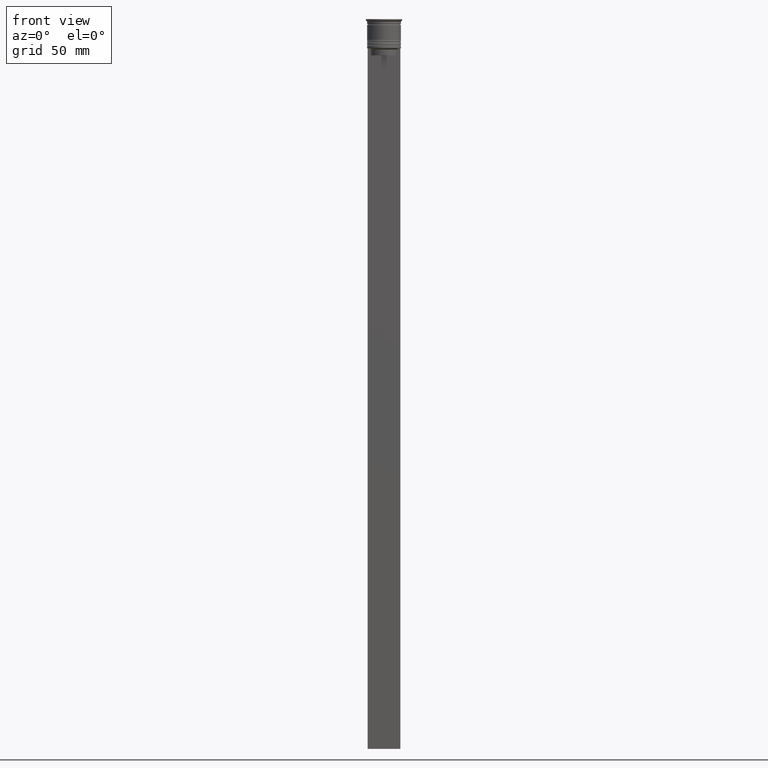
[diagram: clean part render]
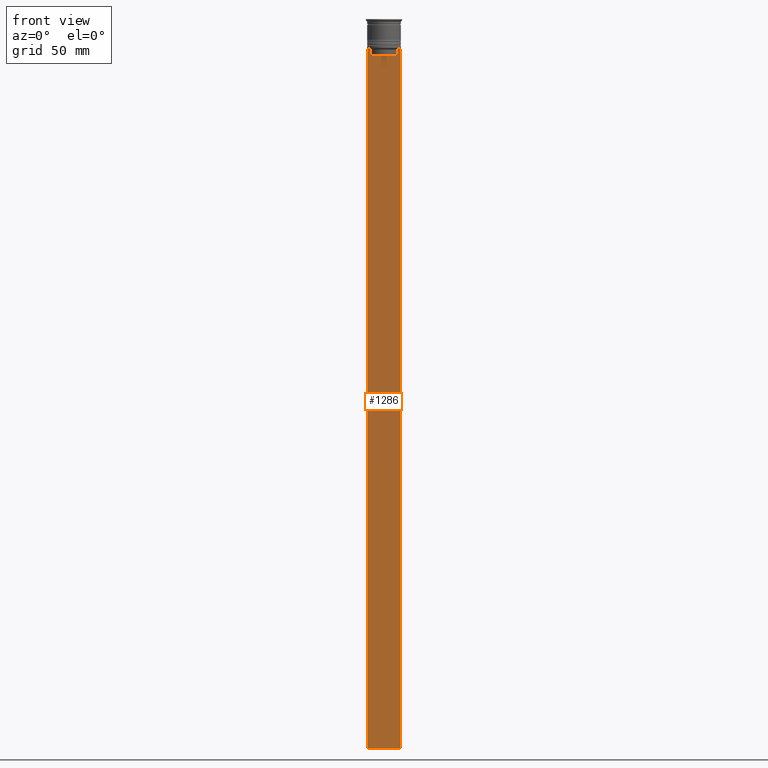
[diagram: same view with one face highlighted and labeled with its STEP entity id]
A machine part, front view. The second image highlights one B-rep face of the part: STEP entity #1286.
In plain terms, the highlighted planar face has unit normal (0, -1, -0).
Its self-contained STEP definition (entity closure, byte-faithful):
#10 = DIRECTION ( 'NONE',  ( -1.000000000000000000, 0.000000000000000000, 0.000000000000000000 ) ) ;
#13 = VERTEX_POINT ( 'NONE', #2265 ) ;
#16 = EDGE_CURVE ( 'NONE', #13, #789, #964, .T. ) ;
#17 = CARTESIAN_POINT ( 'NONE',  ( 7.000000000000012434, -0.5000000000000022204, 1.535668847618198329 ) ) ;
#29 = DIRECTION ( 'NONE',  ( 0.000000000000000000, 0.000000000000000000, -1.000000000000000000 ) ) ;
#54 = ORIENTED_EDGE ( 'NONE', *, *, #634, .F. ) ;
#97 = EDGE_CURVE ( 'NONE', #13, #1515, #109, .T. ) ;
#109 = LINE ( 'NONE', #1565, #1177 ) ;
#126 = DIRECTION ( 'NONE',  ( 1.000000000000000000, 0.000000000000000000, 0.000000000000000000 ) ) ;
#136 = DIRECTION ( 'NONE',  ( 0.000000000000000000, -1.000000000000000000, -0.000000000000000000 ) ) ;
#138 = VERTEX_POINT ( 'NONE', #2136 ) ;
#181 = CARTESIAN_POINT ( 'NONE',  ( 7.000000000000012434, -0.5000000000000022204, -312.5000000000000000 ) ) ;
#194 = ORIENTED_EDGE ( 'NONE', *, *, #783, .F. ) ;
#291 = CARTESIAN_POINT ( 'NONE',  ( 6.129641098791995368, -0.5000000000000022204, -12.50000000000000000 ) ) ;
#292 = DIRECTION ( 'NONE',  ( 1.000000000000000000, 0.000000000000000000, 0.000000000000000000 ) ) ;
#324 = EDGE_LOOP ( 'NONE', ( #1462, #2163, #2137, #1088, #1497, #2047, #522, #54, #662, #194 ) ) ;
#325 = LINE ( 'NONE', #2152, #648 ) ;
#407 = VERTEX_POINT ( 'NONE', #1988 ) ;
#432 = DIRECTION ( 'NONE',  ( 1.000000000000000000, 0.000000000000000000, 0.000000000000000000 ) ) ;
#522 = ORIENTED_EDGE ( 'NONE', *, *, #548, .F. ) ;
#542 = VERTEX_POINT ( 'NONE', #1187 ) ;
#548 = EDGE_CURVE ( 'NONE', #542, #407, #1181, .T. ) ;
#607 = VERTEX_POINT ( 'NONE', #1710 ) ;
#634 = EDGE_CURVE ( 'NONE', #975, #542, #1195, .T. ) ;
#648 = VECTOR ( 'NONE', #1268, 1000.000000000000000 ) ;
#662 = ORIENTED_EDGE ( 'NONE', *, *, #1324, .F. ) ;
#664 = CARTESIAN_POINT ( 'NONE',  ( 7.000000000000012434, -0.5000000000000022204, -12.50000000000000000 ) ) ;
#712 = LINE ( 'NONE', #2108, #2075 ) ;
#783 = EDGE_CURVE ( 'NONE', #1621, #607, #325, .T. ) ;
#789 = VERTEX_POINT ( 'NONE', #1258 ) ;
#810 = AXIS2_PLACEMENT_3D ( 'NONE', #1259, #136, #2320 ) ;
#874 = LINE ( 'NONE', #1752, #885 ) ;
#879 = CARTESIAN_POINT ( 'NONE',  ( -5.962396146966409738, -0.5000000000000022204, -12.66669130573587054 ) ) ;
#885 = VECTOR ( 'NONE', #126, 1000.000000000000000 ) ;
#964 = LINE ( 'NONE', #2059, #2100 ) ;
#975 = VERTEX_POINT ( 'NONE', #1974 ) ;
#1025 = VECTOR ( 'NONE', #10, 1000.000000000000000 ) ;
#1033 = VECTOR ( 'NONE', #1935, 1000.000000000000000 ) ;
#1088 = ORIENTED_EDGE ( 'NONE', *, *, #1753, .F. ) ;
#1096 = CARTESIAN_POINT ( 'NONE',  ( -6.129641098791995368, -0.5000000000000022204, -12.50000000000000000 ) ) ;
#1177 = VECTOR ( 'NONE', #1199, 1000.000000000000000 ) ;
#1181 = B_SPLINE_CURVE_WITH_KNOTS ( 'NONE', 3,
 ( #2285, #1896, #1380, #291 ),
 .UNSPECIFIED., .F., .F.,
 ( 4, 4 ),
 ( 0.02651134470867370918, 0.02721991123504334531 ),
 .UNSPECIFIED. ) ;
#1187 = CARTESIAN_POINT ( 'NONE',  ( 5.627832620112292794, -0.5000000000000022204, -13.00000000000000000 ) ) ;
#1194 = B_SPLINE_CURVE_WITH_KNOTS ( 'NONE', 3,
 ( #1096, #879, #1997, #1630 ),
 .UNSPECIFIED., .F., .F.,
 ( 4, 4 ),
 ( 0.01045365750109871796, 0.01116204421161398619 ),
 .UNSPECIFIED. ) ;
#1195 = LINE ( 'NONE', #1531, #1033 ) ;
#1199 = DIRECTION ( 'NONE',  ( 0.000000000000000000, 0.000000000000000000, -1.000000000000000000 ) ) ;
#1244 = LINE ( 'NONE', #17, #1539 ) ;
#1258 = CARTESIAN_POINT ( 'NONE',  ( -6.129641098791995368, -0.5000000000000022204, -12.50000000000000000 ) ) ;
#1259 = CARTESIAN_POINT ( 'NONE',  ( 7.000000000000012434, -0.5000000000000022204, 1.535668847618198329 ) ) ;
#1261 = VERTEX_POINT ( 'NONE', #664 ) ;
#1268 = DIRECTION ( 'NONE',  ( 0.000000000000000000, 0.000000000000000000, -1.000000000000000000 ) ) ;
#1286 = ADVANCED_FACE ( 'NONE', ( #2286 ), #1924, .T. ) ;
#1324 = EDGE_CURVE ( 'NONE', #607, #975, #712, .T. ) ;
#1380 = CARTESIAN_POINT ( 'NONE',  ( 5.962396079681182570, -0.5000000000000022204, -12.66669137279835766 ) ) ;
#1462 = ORIENTED_EDGE ( 'NONE', *, *, #2043, .F. ) ;
#1497 = ORIENTED_EDGE ( 'NONE', *, *, #1998, .F. ) ;
#1515 = VERTEX_POINT ( 'NONE', #1526 ) ;
#1526 = CARTESIAN_POINT ( 'NONE',  ( -6.999999999999987566, -0.5000000000000022204, -312.5000000000000000 ) ) ;
#1531 = CARTESIAN_POINT ( 'NONE',  ( 5.627832620112292794, -0.5000000000000022204, 0.000000000000000000 ) ) ;
#1539 = VECTOR ( 'NONE', #29, 1000.000000000000000 ) ;
#1565 = CARTESIAN_POINT ( 'NONE',  ( -6.999999999999987566, -0.5000000000000022204, 1.535668847618198329 ) ) ;
#1621 = VERTEX_POINT ( 'NONE', #2322 ) ;
#1630 = CARTESIAN_POINT ( 'NONE',  ( -5.627832620112292794, -0.5000000000000022204, -13.00000000000000000 ) ) ;
#1710 = CARTESIAN_POINT ( 'NONE',  ( -5.627832620112292794, -0.5000000000000022204, -15.50000000000000000 ) ) ;
#1752 = CARTESIAN_POINT ( 'NONE',  ( 7.000000000000012434, -0.5000000000000022204, -12.50000000000000000 ) ) ;
#1753 = EDGE_CURVE ( 'NONE', #138, #1515, #1798, .T. ) ;
#1798 = LINE ( 'NONE', #181, #1025 ) ;
#1896 = CARTESIAN_POINT ( 'NONE',  ( 5.795128760752288777, -0.5000000000000022204, -12.83336023406855375 ) ) ;
#1924 = PLANE ( 'NONE',  #810 ) ;
#1935 = DIRECTION ( 'NONE',  ( -0.000000000000000000, -0.000000000000000000, 1.000000000000000000 ) ) ;
#1974 = CARTESIAN_POINT ( 'NONE',  ( 5.627832620112292794, -0.5000000000000022204, -15.50000000000000000 ) ) ;
#1988 = CARTESIAN_POINT ( 'NONE',  ( 6.129641098791995368, -0.5000000000000022204, -12.50000000000000000 ) ) ;
#1997 = CARTESIAN_POINT ( 'NONE',  ( -5.795128834036803234, -0.5000000000000022204, -12.83336016107156574 ) ) ;
#1998 = EDGE_CURVE ( 'NONE', #1261, #138, #1244, .T. ) ;
#2043 = EDGE_CURVE ( 'NONE', #789, #1621, #1194, .T. ) ;
#2047 = ORIENTED_EDGE ( 'NONE', *, *, #2301, .F. ) ;
#2059 = CARTESIAN_POINT ( 'NONE',  ( 7.000000000000012434, -0.5000000000000022204, -12.50000000000000000 ) ) ;
#2075 = VECTOR ( 'NONE', #292, 1000.000000000000000 ) ;
#2100 = VECTOR ( 'NONE', #432, 1000.000000000000000 ) ;
#2108 = CARTESIAN_POINT ( 'NONE',  ( 0.000000000000000000, -0.5000000000000022204, -15.50000000000000000 ) ) ;
#2136 = CARTESIAN_POINT ( 'NONE',  ( 7.000000000000012434, -0.5000000000000022204, -312.5000000000000000 ) ) ;
#2137 = ORIENTED_EDGE ( 'NONE', *, *, #97, .T. ) ;
#2152 = CARTESIAN_POINT ( 'NONE',  ( -5.627832620112292794, -0.5000000000000022204, 0.000000000000000000 ) ) ;
#2163 = ORIENTED_EDGE ( 'NONE', *, *, #16, .F. ) ;
#2265 = CARTESIAN_POINT ( 'NONE',  ( -6.999999999999987566, -0.5000000000000022204, -12.50000000000000000 ) ) ;
#2285 = CARTESIAN_POINT ( 'NONE',  ( 5.627832620112292794, -0.5000000000000022204, -13.00000000000000000 ) ) ;
#2286 = FACE_OUTER_BOUND ( 'NONE', #324, .T. ) ;
#2301 = EDGE_CURVE ( 'NONE', #407, #1261, #874, .T. ) ;
#2320 = DIRECTION ( 'NONE',  ( 0.000000000000000000, 0.000000000000000000, -1.000000000000000000 ) ) ;
#2322 = CARTESIAN_POINT ( 'NONE',  ( -5.627832620112292794, -0.5000000000000022204, -13.00000000000000000 ) ) ;